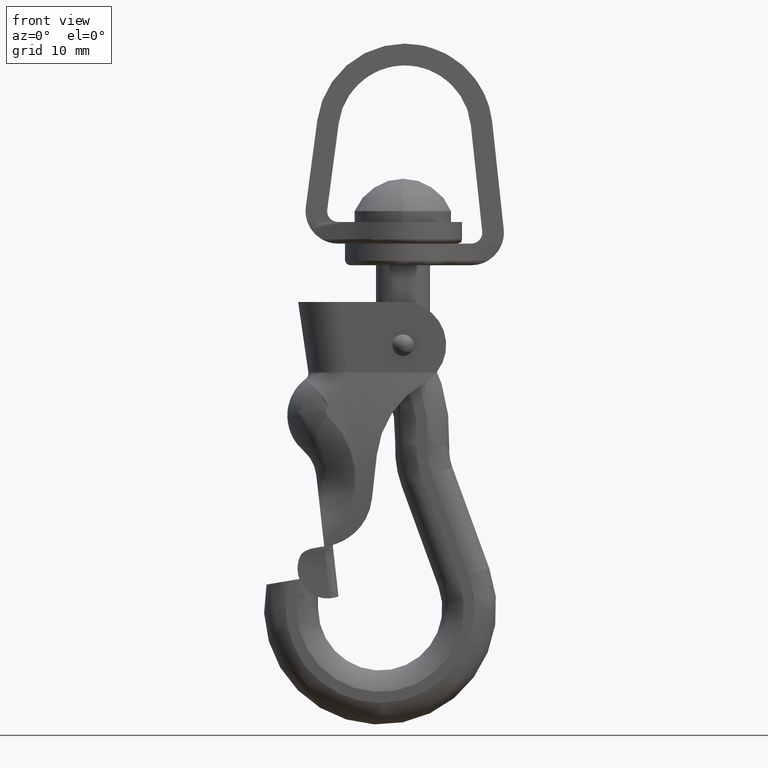
[diagram: clean part render]
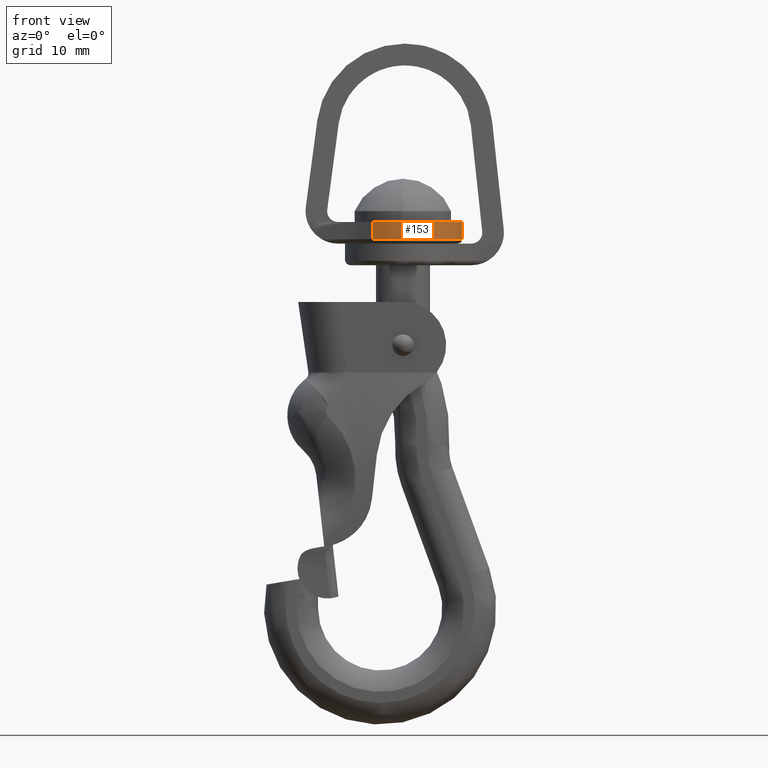
[diagram: same view with one face highlighted and labeled with its STEP entity id]
A machine part, front view. The second image highlights one B-rep face of the part: STEP entity #153.
In plain terms, the highlighted cylindrical surface (partial cylindrical patch) has radius 6.8968 mm, axis along (0, 0, -1).
Its self-contained STEP definition (entity closure, byte-faithful):
#153=ADVANCED_FACE('',(#353),#352,.T.);
#352=CYLINDRICAL_SURFACE('',#1962,6.89682539683E+00);
#353=FACE_OUTER_BOUND('',#1963,.T.);
#1959=CARTESIAN_POINT('',(-1.42108547152E-14,0.00000000000E+00,-9.94984126984E+02));
#1960=DIRECTION('',(-0.00000000000E+00,0.00000000000E+00,-1.00000000000E+00));
#1961=DIRECTION('',(-1.00000000000E+00,-0.00000000000E+00,-0.00000000000E+00));
#1962=AXIS2_PLACEMENT_3D('',#1959,#1960,#1961);
#1963=EDGE_LOOP('',(#4011,#4012,#4013,#4014));
#4011=ORIENTED_EDGE('',*,*,#4863,.F.);
#4012=ORIENTED_EDGE('',*,*,#4864,.T.);
#4013=ORIENTED_EDGE('',*,*,#4865,.T.);
#4014=ORIENTED_EDGE('',*,*,#4866,.F.);
#4863=EDGE_CURVE('',#5444,#5445,#5446,.T.);
#4864=EDGE_CURVE('',#5444,#5452,#5453,.T.);
#4865=EDGE_CURVE('',#5452,#5459,#5460,.T.);
#4866=EDGE_CURVE('',#5445,#5459,#5466,.T.);
#5444=VERTEX_POINT('',#8227);
#5445=VERTEX_POINT('',#8228);
#5446=LINE('',#8229,#8230);
#5452=VERTEX_POINT('',#8232);
#5453=CIRCLE('',#8236,6.89682539683E+00);
#5459=VERTEX_POINT('',#8237);
#5460=LINE('',#8238,#8239);
#5466=CIRCLE('',#8244,6.89682539683E+00);
#8227=CARTESIAN_POINT('',(-3.57789548468E+00,-5.89617371310E+00,3.00793650794E+00));
#8228=CARTESIAN_POINT('',(-3.57789548468E+00,-5.89617371310E+00,5.01587301587E+00));
#8229=CARTESIAN_POINT('',(-3.57789548468E+00,-5.89617371310E+00,3.00793650794E+00));
#8230=VECTOR('',#8231,2.00793650794E+00);
#8231=DIRECTION('',(0.00000000000E+00,0.00000000000E+00,1.00000000000E+00));
#8232=CARTESIAN_POINT('',(-3.57789548468E+00,5.89617371310E+00,3.00793650794E+00));
#8233=CARTESIAN_POINT('',(-1.42108547152E-14,0.00000000000E+00,3.00793650794E+00));
#8234=DIRECTION('',(0.00000000000E+00,0.00000000000E+00,1.00000000000E+00));
#8235=DIRECTION('',(-1.00000000000E+00,-0.00000000000E+00,0.00000000000E+00));
#8236=AXIS2_PLACEMENT_3D('',#8233,#8234,#8235);
#8237=CARTESIAN_POINT('',(-3.57789548468E+00,5.89617371310E+00,5.01587301587E+00));
#8238=CARTESIAN_POINT('',(-3.57789548468E+00,5.89617371310E+00,3.00793650794E+00));
#8239=VECTOR('',#8240,2.00793650794E+00);
#8240=DIRECTION('',(0.00000000000E+00,0.00000000000E+00,1.00000000000E+00));
#8241=CARTESIAN_POINT('',(-1.42108547152E-14,0.00000000000E+00,5.01587301587E+00));
#8242=DIRECTION('',(0.00000000000E+00,0.00000000000E+00,1.00000000000E+00));
#8243=DIRECTION('',(-1.00000000000E+00,-0.00000000000E+00,0.00000000000E+00));
#8244=AXIS2_PLACEMENT_3D('',#8241,#8242,#8243);